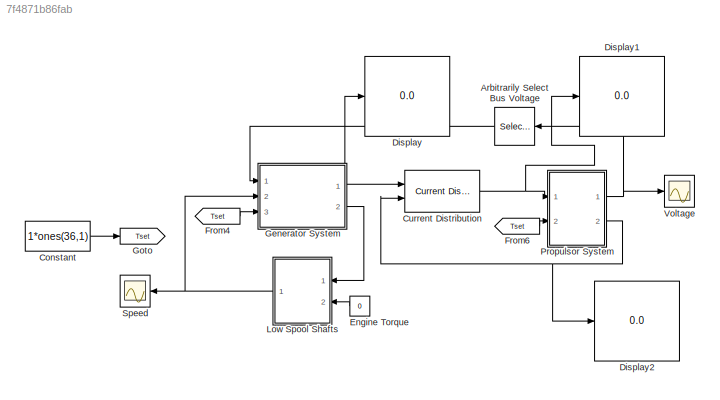
MODEL slx_7f4871b86fab
KIND model
CONFIG AbsTol = auto
CONFIG EnableMultiTasking = off
CONFIG FixedStep = 0.02
CONFIG MaxStep = auto
CONFIG MinStep = auto
CONFIG RelTol = 1e-3
CONFIG SampleTimeConstraint = Unconstrained
CONFIG SolverName = FixedStepAuto
CONFIG StartTime = 0.0
CONFIG StopTime = 10
BLOCK [Selector] Arbitrarily Select Bus Voltage
  IndexOptions = Index vector (dialog)
  Indices = [1 5 9 13]
  InputPortWidth = 16
  OutputSizes = 1
  Ports = [1, 1]
BLOCK [Constant] Constant
  Value = 1*ones(36,1)
BLOCK [Reference] Current Distribution  REF=Lib_EMTAT/Components/Power Flow/Current Distribution
  AttributesFormatString = Current Distribution
  Ports = [2, 1]
  SourceBlock = Lib_EMTAT/Components/Power Flow/Current Distribution
  SourceType = Current Distribution
BLOCK [Display] Display
  Decimation = 1
  Ports = [1]
BLOCK [Display] Display1
  Decimation = 1
  Ports = [1]
BLOCK [Display] Display2
  Decimation = 1
  Ports = [1]
BLOCK [Constant] Engine Torque
  NameLocation = right
  Value = 0
BLOCK [From] From4
  GotoTag = Tset
BLOCK [From] From6
  GotoTag = Tset
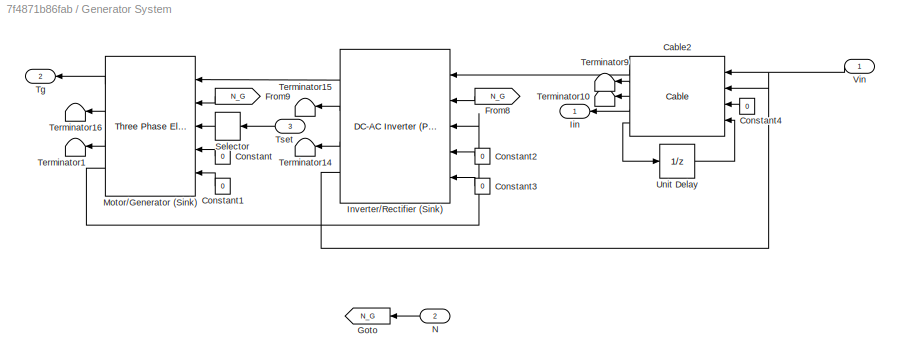
BLOCK [SubSystem] Generator System
  Ports = [3, 2]
BLOCK [Reference] Generator System/Cable2  REF=Lib_EMTAT/Components/Power Flow/Cable
  Ports = [4, 5]
  SourceBlock = Lib_EMTAT/Components/Power Flow/Cable
  SourceType = Cable
BLOCK [Constant] Generator System/Constant
  Value = 0
BLOCK [Constant] Generator System/Constant1
  Value = 0
BLOCK [Constant] Generator System/Constant2
  Value = 0
BLOCK [Constant] Generator System/Constant3
  Value = 0
BLOCK [Constant] Generator System/Constant4
  Value = 0
BLOCK [From] Generator System/From8
  GotoTag = N_G
BLOCK [From] Generator System/From9
  GotoTag = N_G
BLOCK [Goto] Generator System/Goto
  GotoTag = N_G
BLOCK [Outport] Generator System/Iin
BLOCK [Reference] Generator System/Inverter//Rectifier (Sink)  REF=Lib_EMTAT/Components/Power Flow/DC-AC Inverter (Power Loss Map)
  Ports = [5, 4]
  SourceBlock = Lib_EMTAT/Components/Power Flow/DC-AC Inverter (Power Loss Map)
  SourceType = DC-AC Inverter (Power Loss Map)
BLOCK [Reference] Generator System/Motor//Generator (Sink)  REF=Lib_EMTAT/Components/Power Flow/Three Phase Electric Machine
(Sink)
  Ports = [5, 4]
  SourceBlock = Lib_EMTAT/Components/Power Flow/Three Phase Electric Machine\n(Sink)
  SourceType = Three Phase Electric Machine (Sink)
BLOCK [Inport] Generator System/N
  Port = 2
BLOCK [Selector] Generator System/Selector
  IndexOptions = Index vector (dialog)
  Indices = [33:36]
  InputPortWidth = 36
  OutputSizes = 1
  Ports = [1, 1]
BLOCK [Terminator] Generator System/Terminator1
BLOCK [Terminator] Generator System/Terminator10
BLOCK [Terminator] Generator System/Terminator14
BLOCK [Terminator] Generator System/Terminator15
BLOCK [Terminator] Generator System/Terminator16
BLOCK [Terminator] Generator System/Terminator9
BLOCK [Outport] Generator System/Tg
  Port = 2
BLOCK [Inport] Generator System/Tset
  Port = 3
BLOCK [UnitDelay] Generator System/Unit Delay
  HasFrameUpgradeWarning = on
  SampleTime = -1
BLOCK [Inport] Generator System/Vin
BLOCK [Goto] Goto
  GotoTag = Tset
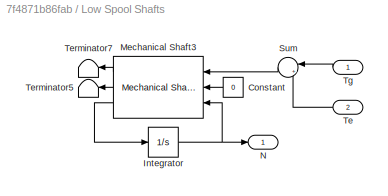
BLOCK [SubSystem] Low Spool Shafts
  Ports = [2, 1]
BLOCK [Constant] Low Spool Shafts/Constant
  Value = 0
BLOCK [Integrator] Low Spool Shafts/Integrator
  InitialCondition = 5000
  Ports = [1, 1]
BLOCK [Reference] Low Spool Shafts/Mechanical Shaft3  REF=Lib_EMTAT/Components/Power Flow/Mechanical Shaft
  Ports = [3, 3]
  SourceBlock = Lib_EMTAT/Components/Power Flow/Mechanical Shaft
  SourceType = Mechanical Shaft
BLOCK [Outport] Low Spool Shafts/N
BLOCK [Sum] Low Spool Shafts/Sum
  Inputs = |++
  Ports = [2, 1]
BLOCK [Inport] Low Spool Shafts/Te
  Port = 2
BLOCK [Terminator] Low Spool Shafts/Terminator5
BLOCK [Terminator] Low Spool Shafts/Terminator7
BLOCK [Inport] Low Spool Shafts/Tg
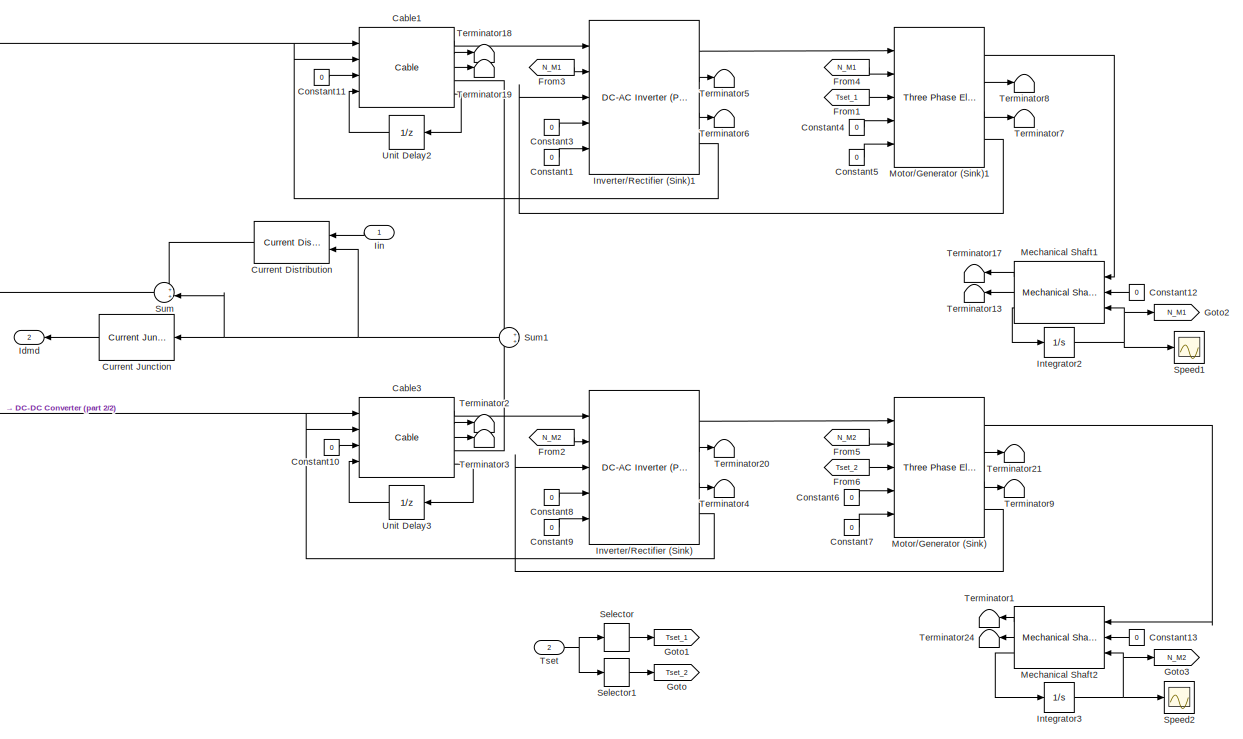
[diagram: Propulsor System - part 1/2, center side, full height]
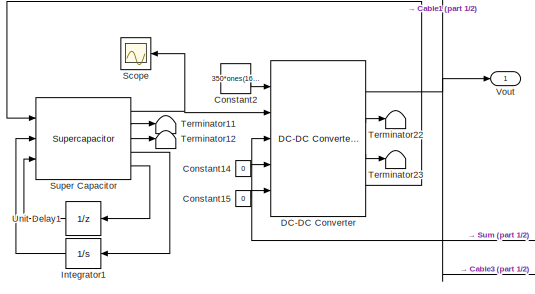
[diagram: Propulsor System - part 2/2, middle left region]
BLOCK [SubSystem] Propulsor System
  Ports = [2, 2]
BLOCK [Reference] Propulsor System/Cable1  REF=Lib_EMTAT/Components/Power Flow/Cable
  Ports = [4, 5]
  SourceBlock = Lib_EMTAT/Components/Power Flow/Cable
  SourceType = Cable
BLOCK [Reference] Propulsor System/Cable3  REF=Lib_EMTAT/Components/Power Flow/Cable
  Ports = [4, 5]
  SourceBlock = Lib_EMTAT/Components/Power Flow/Cable
  SourceType = Cable
BLOCK [Constant] Propulsor System/Constant1
  Value = 0
BLOCK [Constant] Propulsor System/Constant10
  Value = 0
BLOCK [Constant] Propulsor System/Constant11
  Value = 0
BLOCK [Constant] Propulsor System/Constant12
  Value = 0
BLOCK [Constant] Propulsor System/Constant13
  Value = 0
BLOCK [Constant] Propulsor System/Constant14
  Value = 0
BLOCK [Constant] Propulsor System/Constant15
  Value = 0
BLOCK [Constant] Propulsor System/Constant2
  Value = 350*ones(16,1)
BLOCK [Constant] Propulsor System/Constant3
  Value = 0
BLOCK [Constant] Propulsor System/Constant4
  Value = 0
BLOCK [Constant] Propulsor System/Constant5
  Value = 0
BLOCK [Constant] Propulsor System/Constant6
  Value = 0
BLOCK [Constant] Propulsor System/Constant7
  Value = 0
BLOCK [Constant] Propulsor System/Constant8
  Value = 0
BLOCK [Constant] Propulsor System/Constant9
  Value = 0
BLOCK [Reference] Propulsor System/Current Distribution  REF=Lib_EMTAT/Components/Power Flow/Current Distribution
  AttributesFormatString = Current Distribution
  Ports = [2, 1]
  SourceBlock = Lib_EMTAT/Components/Power Flow/Current Distribution
  SourceType = Current Distribution
BLOCK [Reference] Propulsor System/Current Junction  REF=Lib_EMTAT/Components/Power Flow/Current Junction
  AttributesFormatString = Current Junction
  Ports = [1, 1]
  SourceBlock = Lib_EMTAT/Components/Power Flow/Current Junction
  SourceType = Current Junction
BLOCK [Reference] Propulsor System/DC-DC Converter  REF=Lib_EMTAT/Components/Power Flow/DC-DC Converter
(Power Loss Map)
(Set Output Voltage)
  Ports = [5, 4]
  SourceBlock = Lib_EMTAT/Components/Power Flow/DC-DC Converter\n(Power Loss Map)\n(Set Output Voltage)
  SourceType = DC-DC Converter (Power Loss Map) (Set Output Voltage)
BLOCK [From] Propulsor System/From1
  GotoTag = Tset_1
BLOCK [From] Propulsor System/From2
  GotoTag = N_M2
BLOCK [From] Propulsor System/From3
  GotoTag = N_M1
BLOCK [From] Propulsor System/From4
  GotoTag = N_M1
BLOCK [From] Propulsor System/From5
  GotoTag = N_M2
BLOCK [From] Propulsor System/From6
  GotoTag = Tset_2
BLOCK [Goto] Propulsor System/Goto
  GotoTag = Tset_2
BLOCK [Goto] Propulsor System/Goto1
  GotoTag = Tset_1
BLOCK [Goto] Propulsor System/Goto2
  GotoTag = N_M1
BLOCK [Goto] Propulsor System/Goto3
  GotoTag = N_M2
BLOCK [Outport] Propulsor System/Idmd
  Port = 2
BLOCK [Inport] Propulsor System/Iin
BLOCK [Integrator] Propulsor System/Integrator1
  InitialCondition = 150
  Ports = [1, 1]
BLOCK [Integrator] Propulsor System/Integrator2
  InitialCondition = 2000
  Ports = [1, 1]
BLOCK [Integrator] Propulsor System/Integrator3
  InitialCondition = 2000
  Ports = [1, 1]
BLOCK [Reference] Propulsor System/Inverter//Rectifier (Sink)  REF=Lib_EMTAT/Components/Power Flow/DC-AC Inverter (Power Loss Map)
  Ports = [5, 4]
  SourceBlock = Lib_EMTAT/Components/Power Flow/DC-AC Inverter (Power Loss Map)
  SourceType = DC-AC Inverter (Power Loss Map)
BLOCK [Reference] Propulsor System/Inverter//Rectifier (Sink)1  REF=Lib_EMTAT/Components/Power Flow/DC-AC Inverter (Power Loss Map)
  Ports = [5, 4]
  SourceBlock = Lib_EMTAT/Components/Power Flow/DC-AC Inverter (Power Loss Map)
  SourceType = DC-AC Inverter (Power Loss Map)
BLOCK [Reference] Propulsor System/Mechanical Shaft1  REF=Lib_EMTAT/Components/Power Flow/Mechanical Shaft
  Ports = [3, 3]
  SourceBlock = Lib_EMTAT/Components/Power Flow/Mechanical Shaft
  SourceType = Mechanical Shaft
BLOCK [Reference] Propulsor System/Mechanical Shaft2  REF=Lib_EMTAT/Components/Power Flow/Mechanical Shaft
  Ports = [3, 3]
  SourceBlock = Lib_EMTAT/Components/Power Flow/Mechanical Shaft
  SourceType = Mechanical Shaft
BLOCK [Reference] Propulsor System/Motor//Generator (Sink)  REF=Lib_EMTAT/Components/Power Flow/Three Phase Electric Machine
(Sink)
  Ports = [5, 4]
  SourceBlock = Lib_EMTAT/Components/Power Flow/Three Phase Electric Machine\n(Sink)
  SourceType = Three Phase Electric Machine (Sink)
BLOCK [Reference] Propulsor System/Motor//Generator (Sink)1  REF=Lib_EMTAT/Components/Power Flow/Three Phase Electric Machine
(Sink)
  Ports = [5, 4]
  SourceBlock = Lib_EMTAT/Components/Power Flow/Three Phase Electric Machine\n(Sink)
  SourceType = Three Phase Electric Machine (Sink)
BLOCK [Scope] Propulsor System/Scope
  Floating = off
  NumInputPorts = 1
  Ports = [1]
  ScopeSpecificationString = Simulink.scopes.TimeScopeBlockCfg('CurrentConfiguration', extmgr.ConfigurationSet(extmgr.Configuration('Core','General UI',true),extmgr.Configuration('Core','Source UI',true),extmgr.Configuration('Sources','WiredSimulink',true,'DataLoggingVariableName','ScopeData3'),extmgr.Configuration('Visuals','Time Domain',true,'SerializedDisplays',{struct('MinYLimReal','50.00000','MaxYLimReal','250.00000','YL...<+1751ch>
BLOCK [Selector] Propulsor System/Selector
  IndexOptions = Index vector (dialog)
  Indices = [1:16]
  InputPortWidth = 36
  OutputSizes = 1
  Ports = [1, 1]
BLOCK [Selector] Propulsor System/Selector1
  IndexOptions = Index vector (dialog)
  Indices = [17:32]
  InputPortWidth = 36
  OutputSizes = 1
  Ports = [1, 1]
BLOCK [Scope] Propulsor System/Speed1
  Floating = off
  NumInputPorts = 1
  Ports = [1]
  ScopeSpecificationString = Simulink.scopes.TimeScopeBlockCfg('CurrentConfiguration', extmgr.ConfigurationSet(extmgr.Configuration('Core','General UI',true),extmgr.Configuration('Core','Source UI',true),extmgr.Configuration('Sources','WiredSimulink',true,'DataLoggingVariableName','ScopeData1'),extmgr.Configuration('Visuals','Time Domain',true,'SerializedDisplays',{struct('MinYLimReal','577.72874','MaxYLimReal','2158.03014','...<+1638ch>
BLOCK [Scope] Propulsor System/Speed2
  Floating = off
  NumInputPorts = 1
  Ports = [1]
  ScopeSpecificationString = Simulink.scopes.TimeScopeBlockCfg('CurrentConfiguration', extmgr.ConfigurationSet(extmgr.Configuration('Core','General UI',true),extmgr.Configuration('Core','Source UI',true),extmgr.Configuration('Sources','WiredSimulink',true,'DataLoggingVariableName','ScopeData2'),extmgr.Configuration('Visuals','Time Domain',true),extmgr.Configuration('Tools','Plot Navigation',true),extmgr.Configuration('Tools',...<+40ch>
BLOCK [Sum] Propulsor System/Sum
  Inputs = ++|
  Ports = [2, 1]
BLOCK [Sum] Propulsor System/Sum1
  NameLocation = top
  Ports = [2, 1]
BLOCK [Reference] Propulsor System/Super Capacitor  REF=Lib_EMTAT/Components/Power Flow/Supercapacitor
  Ports = [3, 5]
  SourceBlock = Lib_EMTAT/Components/Power Flow/Supercapacitor
  SourceType = Supercapacitor
BLOCK [Terminator] Propulsor System/Terminator1
BLOCK [Terminator] Propulsor System/Terminator11
BLOCK [Terminator] Propulsor System/Terminator12
BLOCK [Terminator] Propulsor System/Terminator13
BLOCK [Terminator] Propulsor System/Terminator17
BLOCK [Terminator] Propulsor System/Terminator18
BLOCK [Terminator] Propulsor System/Terminator19
BLOCK [Terminator] Propulsor System/Terminator2
BLOCK [Terminator] Propulsor System/Terminator20
BLOCK [Terminator] Propulsor System/Terminator21
BLOCK [Terminator] Propulsor System/Terminator22
BLOCK [Terminator] Propulsor System/Terminator23
BLOCK [Terminator] Propulsor System/Terminator24
BLOCK [Terminator] Propulsor System/Terminator3
BLOCK [Terminator] Propulsor System/Terminator4
BLOCK [Terminator] Propulsor System/Terminator5
BLOCK [Terminator] Propulsor System/Terminator6
BLOCK [Terminator] Propulsor System/Terminator7
BLOCK [Terminator] Propulsor System/Terminator8
BLOCK [Terminator] Propulsor System/Terminator9
BLOCK [Inport] Propulsor System/Tset
  Port = 2
BLOCK [UnitDelay] Propulsor System/Unit Delay1
  HasFrameUpgradeWarning = on
  SampleTime = -1
BLOCK [UnitDelay] Propulsor System/Unit Delay2
  HasFrameUpgradeWarning = on
  SampleTime = -1
BLOCK [UnitDelay] Propulsor System/Unit Delay3
  HasFrameUpgradeWarning = on
  SampleTime = -1
BLOCK [Outport] Propulsor System/Vout
BLOCK [Scope] Speed
  Floating = off
  NumInputPorts = 1
  Ports = [1]
  ScopeSpecificationString = Simulink.scopes.TimeScopeBlockCfg('CurrentConfiguration', extmgr.ConfigurationSet(extmgr.Configuration('Core','General UI',true),extmgr.Configuration('Core','Source UI',true),extmgr.Configuration('Sources','WiredSimulink',true,'DataLoggingVariableName','ScopeData4'),extmgr.Configuration('Visuals','Time Domain',true),extmgr.Configuration('Tools','Plot Navigation',true),extmgr.Configuration('Tools',...<+40ch>
BLOCK [Scope] Voltage
  Floating = off
  NumInputPorts = 1
  Ports = [1]
  ScopeSpecificationString = Simulink.scopes.TimeScopeBlockCfg('CurrentConfiguration', extmgr.ConfigurationSet(extmgr.Configuration('Core','General UI',true),extmgr.Configuration('Core','Source UI',true),extmgr.Configuration('Sources','WiredSimulink',true),extmgr.Configuration('Visuals','Time Domain',true),extmgr.Configuration('Tools','Plot Navigation',true),extmgr.Configuration('Tools','Measurements',true)),'Version','2022b'...<+1ch>
LINE Arbitrarily Select Bus Voltage:1 -> Generator System:1
LINE Constant:1 -> Goto:1
NET Current Distribution:1 -> Display1:1, Propulsor System:1
LINE Engine Torque:1 -> Low Spool Shafts:2
LINE From4:1 -> Generator System:3
LINE From6:1 -> Propulsor System:2
LINE Generator System/Cable2:1 -> Generator System/Inverter//Rectifier (Sink):1
LINE Generator System/Cable2:2 -> Generator System/Terminator9:1
LINE Generator System/Cable2:3 -> Generator System/Terminator10:1
LINE Generator System/Cable2:4 -> Generator System/Iin:1
LINE Generator System/Cable2:5 -> Generator System/Unit Delay:1
LINE Generator System/Constant1:1 -> Generator System/Motor//Generator (Sink):5
LINE Generator System/Constant2:1 -> Generator System/Inverter//Rectifier (Sink):4
LINE Generator System/Constant3:1 -> Generator System/Inverter//Rectifier (Sink):5
LINE Generator System/Constant4:1 -> Generator System/Cable2:3
LINE Generator System/Constant:1 -> Generator System/Motor//Generator (Sink):4
LINE Generator System/From8:1 -> Generator System/Inverter//Rectifier (Sink):2
LINE Generator System/From9:1 -> Generator System/Motor//Generator (Sink):2
LINE Generator System/Inverter//Rectifier (Sink):1 -> Generator System/Motor//Generator (Sink):1
LINE Generator System/Inverter//Rectifier (Sink):2 -> Generator System/Terminator15:1
LINE Generator System/Inverter//Rectifier (Sink):3 -> Generator System/Terminator14:1
LINE Generator System/Inverter//Rectifier (Sink):4 -> Generator System/Cable2:2
LINE Generator System/Motor//Generator (Sink):1 -> Generator System/Tg:1
LINE Generator System/Motor//Generator (Sink):2 -> Generator System/Terminator16:1
LINE Generator System/Motor//Generator (Sink):3 -> Generator System/Terminator1:1
LINE Generator System/Motor//Generator (Sink):4 -> Generator System/Inverter//Rectifier (Sink):3
LINE Generator System/N:1 -> Generator System/Goto:1
LINE Generator System/Selector:1 -> Generator System/Motor//Generator (Sink):3
LINE Generator System/Tset:1 -> Generator System/Selector:1
LINE Generator System/Unit Delay:1 -> Generator System/Cable2:4
LINE Generator System/Vin:1 -> Generator System/Cable2:1
NET Generator System:1 -> Current Distribution:1, Display:1
LINE Generator System:2 -> Low Spool Shafts:1
LINE Low Spool Shafts/Constant:1 -> Low Spool Shafts/Mechanical Shaft3:2
NET Low Spool Shafts/Integrator:1 -> Low Spool Shafts/Mechanical Shaft3:3, Low Spool Shafts/N:1
LINE Low Spool Shafts/Mechanical Shaft3:1 -> Low Spool Shafts/Terminator7:1
LINE Low Spool Shafts/Mechanical Shaft3:2 -> Low Spool Shafts/Terminator5:1
LINE Low Spool Shafts/Mechanical Shaft3:3 -> Low Spool Shafts/Integrator:1
LINE Low Spool Shafts/Sum:1 -> Low Spool Shafts/Mechanical Shaft3:1
LINE Low Spool Shafts/Te:1 -> Low Spool Shafts/Sum:2
LINE Low Spool Shafts/Tg:1 -> Low Spool Shafts/Sum:1
NET Low Spool Shafts:1 -> Generator System:2, Speed:1
LINE Propulsor System/Cable1:1 -> Propulsor System/Inverter//Rectifier (Sink)1:1
LINE Propulsor System/Cable1:2 -> Propulsor System/Terminator18:1
LINE Propulsor System/Cable1:3 -> Propulsor System/Terminator19:1
LINE Propulsor System/Cable1:4 -> Propulsor System/Sum1:1
LINE Propulsor System/Cable1:5 -> Propulsor System/Unit Delay2:1
LINE Propulsor System/Cable3:1 -> Propulsor System/Inverter//Rectifier (Sink):1
LINE Propulsor System/Cable3:2 -> Propulsor System/Terminator2:1
LINE Propulsor System/Cable3:3 -> Propulsor System/Terminator3:1
LINE Propulsor System/Cable3:4 -> Propulsor System/Sum1:2
LINE Propulsor System/Cable3:5 -> Propulsor System/Unit Delay3:1
LINE Propulsor System/Constant10:1 -> Propulsor System/Cable3:3
LINE Propulsor System/Constant11:1 -> Propulsor System/Cable1:3
LINE Propulsor System/Constant12:1 -> Propulsor System/Mechanical Shaft1:2
LINE Propulsor System/Constant13:1 -> Propulsor System/Mechanical Shaft2:2
LINE Propulsor System/Constant14:1 -> Propulsor System/DC-DC Converter:4
LINE Propulsor System/Constant15:1 -> Propulsor System/DC-DC Converter:5
LINE Propulsor System/Constant1:1 -> Propulsor System/Inverter//Rectifier (Sink)1:5
LINE Propulsor System/Constant2:1 -> Propulsor System/DC-DC Converter:1
LINE Propulsor System/Constant3:1 -> Propulsor System/Inverter//Rectifier (Sink)1:4
LINE Propulsor System/Constant4:1 -> Propulsor System/Motor//Generator (Sink)1:4
LINE Propulsor System/Constant5:1 -> Propulsor System/Motor//Generator (Sink)1:5
LINE Propulsor System/Constant6:1 -> Propulsor System/Motor//Generator (Sink):4
LINE Propulsor System/Constant7:1 -> Propulsor System/Motor//Generator (Sink):5
LINE Propulsor System/Constant8:1 -> Propulsor System/Inverter//Rectifier (Sink):4
LINE Propulsor System/Constant9:1 -> Propulsor System/Inverter//Rectifier (Sink):5
LINE Propulsor System/Current Distribution:1 -> Propulsor System/Sum:1
LINE Propulsor System/Current Junction:1 -> Propulsor System/Idmd:1
NET Propulsor System/DC-DC Converter:1 -> Propulsor System/Cable1:1, Propulsor System/Cable3:1, Propulsor System/Vout:1
LINE Propulsor System/DC-DC Converter:2 -> Propulsor System/Terminator22:1
LINE Propulsor System/DC-DC Converter:3 -> Propulsor System/Terminator23:1
LINE Propulsor System/DC-DC Converter:4 -> Propulsor System/Super Capacitor:1
LINE Propulsor System/From1:1 -> Propulsor System/Motor//Generator (Sink)1:3
LINE Propulsor System/From2:1 -> Propulsor System/Inverter//Rectifier (Sink):2
LINE Propulsor System/From3:1 -> Propulsor System/Inverter//Rectifier (Sink)1:2
LINE Propulsor System/From4:1 -> Propulsor System/Motor//Generator (Sink)1:2
LINE Propulsor System/From5:1 -> Propulsor System/Motor//Generator (Sink):2
LINE Propulsor System/From6:1 -> Propulsor System/Motor//Generator (Sink):3
LINE Propulsor System/Iin:1 -> Propulsor System/Current Distribution:1
LINE Propulsor System/Integrator1:1 -> Propulsor System/Super Capacitor:2
NET Propulsor System/Integrator2:1 -> Propulsor System/Goto2:1, Propulsor System/Mechanical Shaft1:3, Propulsor System/Speed1:1
NET Propulsor System/Integrator3:1 -> Propulsor System/Goto3:1, Propulsor System/Mechanical Shaft2:3, Propulsor System/Speed2:1
LINE Propulsor System/Inverter//Rectifier (Sink)1:1 -> Propulsor System/Motor//Generator (Sink)1:1
LINE Propulsor System/Inverter//Rectifier (Sink)1:2 -> Propulsor System/Terminator5:1
LINE Propulsor System/Inverter//Rectifier (Sink)1:3 -> Propulsor System/Terminator6:1
LINE Propulsor System/Inverter//Rectifier (Sink)1:4 -> Propulsor System/Cable1:2
LINE Propulsor System/Inverter//Rectifier (Sink):1 -> Propulsor System/Motor//Generator (Sink):1
LINE Propulsor System/Inverter//Rectifier (Sink):2 -> Propulsor System/Terminator20:1
LINE Propulsor System/Inverter//Rectifier (Sink):3 -> Propulsor System/Terminator4:1
LINE Propulsor System/Inverter//Rectifier (Sink):4 -> Propulsor System/Cable3:2
LINE Propulsor System/Mechanical Shaft1:1 -> Propulsor System/Terminator17:1
LINE Propulsor System/Mechanical Shaft1:2 -> Propulsor System/Terminator13:1
LINE Propulsor System/Mechanical Shaft1:3 -> Propulsor System/Integrator2:1
LINE Propulsor System/Mechanical Shaft2:1 -> Propulsor System/Terminator1:1
LINE Propulsor System/Mechanical Shaft2:2 -> Propulsor System/Terminator24:1
LINE Propulsor System/Mechanical Shaft2:3 -> Propulsor System/Integrator3:1
LINE Propulsor System/Motor//Generator (Sink)1:1 -> Propulsor System/Mechanical Shaft1:1
LINE Propulsor System/Motor//Generator (Sink)1:2 -> Propulsor System/Terminator8:1
LINE Propulsor System/Motor//Generator (Sink)1:3 -> Propulsor System/Terminator7:1
LINE Propulsor System/Motor//Generator (Sink)1:4 -> Propulsor System/Inverter//Rectifier (Sink)1:3
LINE Propulsor System/Motor//Generator (Sink):1 -> Propulsor System/Mechanical Shaft2:1
LINE Propulsor System/Motor//Generator (Sink):2 -> Propulsor System/Terminator21:1
LINE Propulsor System/Motor//Generator (Sink):3 -> Propulsor System/Terminator9:1
LINE Propulsor System/Motor//Generator (Sink):4 -> Propulsor System/Inverter//Rectifier (Sink):3
LINE Propulsor System/Selector1:1 -> Propulsor System/Goto:1
LINE Propulsor System/Selector:1 -> Propulsor System/Goto1:1
NET Propulsor System/Sum1:1 -> Propulsor System/Current Distribution:2, Propulsor System/Current Junction:1, Propulsor System/Sum:2
LINE Propulsor System/Sum:1 -> Propulsor System/DC-DC Converter:3
NET Propulsor System/Super Capacitor:1 -> Propulsor System/DC-DC Converter:2, Propulsor System/Scope:1
LINE Propulsor System/Super Capacitor:2 -> Propulsor System/Terminator11:1
LINE Propulsor System/Super Capacitor:3 -> Propulsor System/Terminator12:1
LINE Propulsor System/Super Capacitor:4 -> Propulsor System/Integrator1:1
LINE Propulsor System/Super Capacitor:5 -> Propulsor System/Unit Delay1:1
NET Propulsor System/Tset:1 -> Propulsor System/Selector1:1, Propulsor System/Selector:1
LINE Propulsor System/Unit Delay1:1 -> Propulsor System/Super Capacitor:3
LINE Propulsor System/Unit Delay2:1 -> Propulsor System/Cable1:4
LINE Propulsor System/Unit Delay3:1 -> Propulsor System/Cable3:4
NET Propulsor System:1 -> Arbitrarily Select Bus Voltage:1, Voltage:1
NET Propulsor System:2 -> Current Distribution:2, Display2:1
note: NET lines group one-source signal fan-out (src -> all destinations, sorted); 1:1 wires keep LINE
